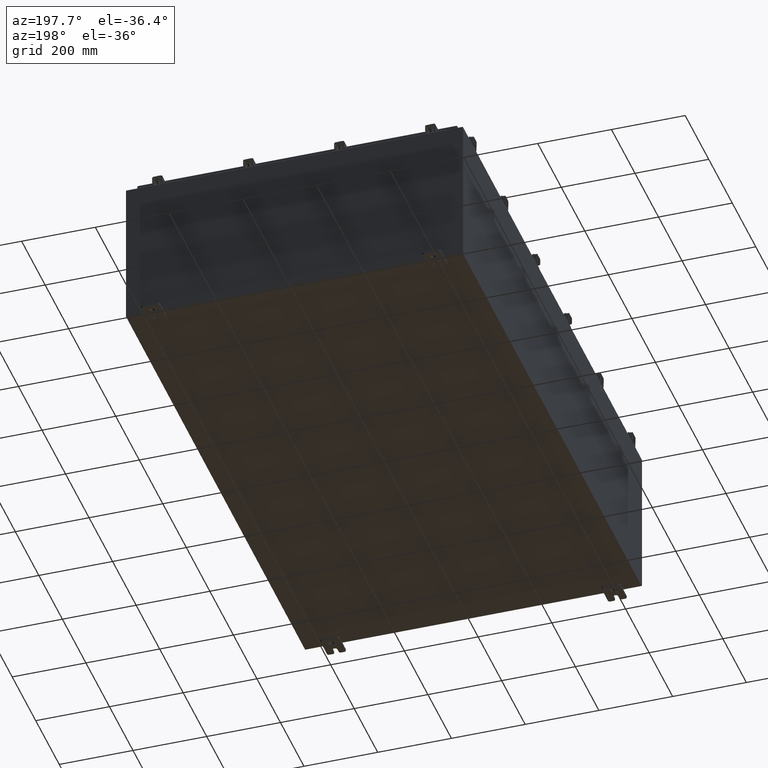
[diagram: clean part render]
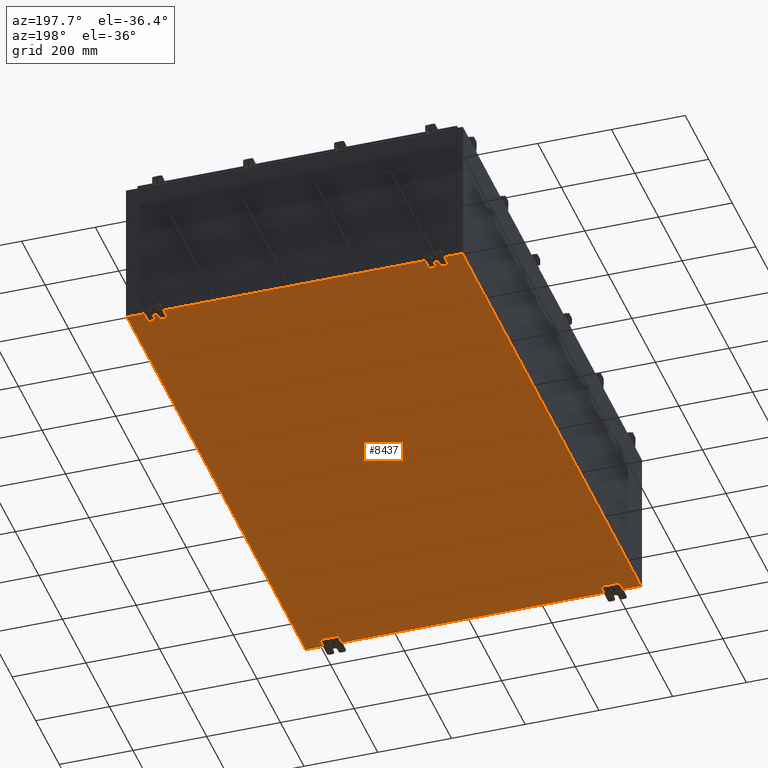
[diagram: same view with one face highlighted and labeled with its STEP entity id]
A machine part, auxiliary view. The second image highlights one B-rep face of the part: STEP entity #8437.
In plain terms, the highlighted planar face has unit normal (0, 0, -1).
Its self-contained STEP definition (entity closure, byte-faithful):
#92 = LINE ( 'NONE', #24295, #5689 ) ;
#118 = VERTEX_POINT ( 'NONE', #5556 ) ;
#737 = EDGE_CURVE ( 'NONE', #118, #15990, #9540, .T. ) ;
#1074 = VERTEX_POINT ( 'NONE', #10106 ) ;
#1789 = CARTESIAN_POINT ( 'NONE',  ( 17.91229999999999800, 29.92529999999999300, -0.07469999999999994700 ) ) ;
#2776 = ORIENTED_EDGE ( 'NONE', *, *, #737, .T. ) ;
#3780 = VECTOR ( 'NONE', #18506, 39.37007874015748100 ) ;
#4141 = DIRECTION ( 'NONE',  ( 0.0000000000000000000, 0.0000000000000000000, -1.000000000000000000 ) ) ;
#4317 = PLANE ( 'NONE',  #18434 ) ;
#4454 = LINE ( 'NONE', #16358, #3780 ) ;
#4764 = FACE_OUTER_BOUND ( 'NONE', #24283, .T. ) ;
#5556 = CARTESIAN_POINT ( 'NONE',  ( 17.91229999999999800, 29.92529999999999300, -0.07469999999999994700 ) ) ;
#5689 = VECTOR ( 'NONE', #11485, 39.37007874015748100 ) ;
#8437 = ADVANCED_FACE ( 'NONE', ( #4764 ), #4317, .T. ) ;
#8855 = VECTOR ( 'NONE', #12003, 39.37007874015748100 ) ;
#9540 = LINE ( 'NONE', #1789, #8855 ) ;
#10064 = CARTESIAN_POINT ( 'NONE',  ( 17.91229999999999800, -29.92530000000001100, -0.07470000000000000300 ) ) ;
#10106 = CARTESIAN_POINT ( 'NONE',  ( -17.91230000000000200, 29.92529999999998600, -0.07470000000000000300 ) ) ;
#11485 = DIRECTION ( 'NONE',  ( 1.000000000000000000, 0.0000000000000000000, 0.0000000000000000000 ) ) ;
#12003 = DIRECTION ( 'NONE',  ( -0.0000000000000000000, -1.000000000000000000, -0.0000000000000000000 ) ) ;
#13635 = VERTEX_POINT ( 'NONE', #19908 ) ;
#14990 = CARTESIAN_POINT ( 'NONE',  ( 0.0000000000000000000, 0.0000000000000000000, -0.07470000000000000300 ) ) ;
#15709 = EDGE_CURVE ( 'NONE', #13635, #15990, #92, .T. ) ;
#15990 = VERTEX_POINT ( 'NONE', #10064 ) ;
#16358 = CARTESIAN_POINT ( 'NONE',  ( -17.91230000000000200, -29.92530000000002100, -0.07469999999999994700 ) ) ;
#16440 = DIRECTION ( 'NONE',  ( -1.000000000000000000, -0.0000000000000000000, -0.0000000000000000000 ) ) ;
#17039 = ORIENTED_EDGE ( 'NONE', *, *, #26989, .F. ) ;
#18434 = AXIS2_PLACEMENT_3D ( 'NONE', #14990, #4141, #19295 ) ;
#18506 = DIRECTION ( 'NONE',  ( -0.0000000000000000000, 1.000000000000000000, -0.0000000000000000000 ) ) ;
#19295 = DIRECTION ( 'NONE',  ( -1.000000000000000000, 0.0000000000000000000, -0.0000000000000000000 ) ) ;
#19908 = CARTESIAN_POINT ( 'NONE',  ( -17.91230000000000200, -29.92530000000001100, -0.07469999999999994700 ) ) ;
#19951 = ORIENTED_EDGE ( 'NONE', *, *, #15709, .F. ) ;
#20907 = EDGE_CURVE ( 'NONE', #13635, #1074, #4454, .T. ) ;
#21888 = VECTOR ( 'NONE', #16440, 39.37007874015748100 ) ;
#22552 = LINE ( 'NONE', #27055, #21888 ) ;
#24283 = EDGE_LOOP ( 'NONE', ( #19951, #26047, #17039, #2776 ) ) ;
#24295 = CARTESIAN_POINT ( 'NONE',  ( -18.00000000000000400, -29.92530000000001100, -0.07470000000000000300 ) ) ;
#26047 = ORIENTED_EDGE ( 'NONE', *, *, #20907, .T. ) ;
#26989 = EDGE_CURVE ( 'NONE', #118, #1074, #22552, .T. ) ;
#27055 = CARTESIAN_POINT ( 'NONE',  ( -18.00000000000000400, 29.92529999999998900, -0.07470000000000000300 ) ) ;